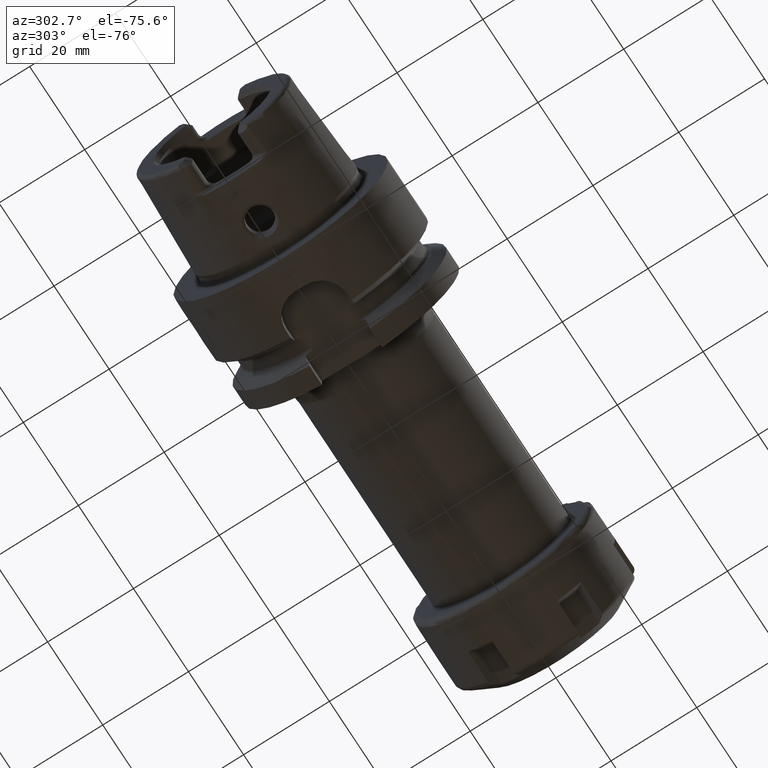
[diagram: clean part render]
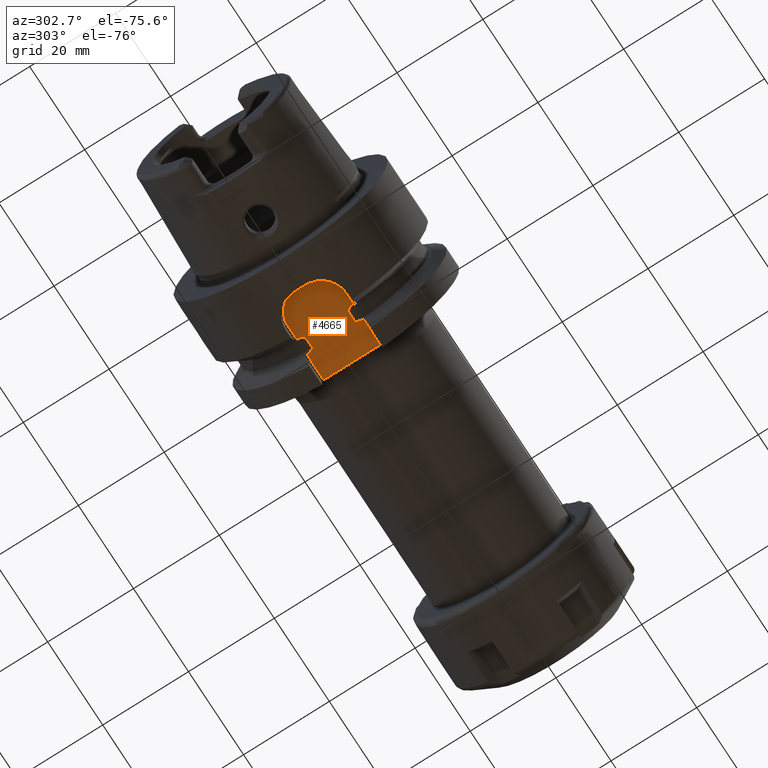
[diagram: same view with one face highlighted and labeled with its STEP entity id]
A machine part, auxiliary view. The second image highlights one B-rep face of the part: STEP entity #4665.
In plain terms, the highlighted planar face has unit normal (0, 0, -1).
Its self-contained STEP definition (entity closure, byte-faithful):
#1239=DIRECTION('',(1.E0,0.E0,0.E0));
#1240=VECTOR('',#1239,2.325E0);
#1241=CARTESIAN_POINT('',(1.68375E1,4.936154880066E0,-2.09E1));
#1242=LINE('',#1241,#1240);
#1247=DIRECTION('',(-1.E0,0.E0,0.E0));
#1248=VECTOR('',#1247,2.325E0);
#1249=CARTESIAN_POINT('',(1.91625E1,-4.936154880066E0,-2.09E1));
#1250=LINE('',#1249,#1248);
#1260=DIRECTION('',(-1.E0,0.E0,0.E0));
#1261=VECTOR('',#1260,6.101156887692E0);
#1262=CARTESIAN_POINT('',(2.595E1,6.6175E0,-2.09E1));
#1263=LINE('',#1262,#1261);
#1264=CARTESIAN_POINT('',(1.91625E1,4.936154880066E0,-2.09E1));
#1265=CARTESIAN_POINT('',(1.918665467019E1,4.936154880066E0,-2.09E1));
#1266=CARTESIAN_POINT('',(1.923332994473E1,4.946110970950E0,-2.09E1));
#1267=CARTESIAN_POINT('',(1.930011591954E1,4.987363827586E0,-2.09E1));
#1268=CARTESIAN_POINT('',(1.935887911623E1,5.045587941002E0,-2.09E1));
#1269=CARTESIAN_POINT('',(1.941409238306E1,5.118852703346E0,-2.09E1));
#1270=CARTESIAN_POINT('',(1.946686951149E1,5.206868186285E0,-2.09E1));
#1271=CARTESIAN_POINT('',(1.951654929273E1,5.306591079075E0,-2.09E1));
#1272=CARTESIAN_POINT('',(1.956328216778E1,5.416157301983E0,-2.09E1));
#1273=CARTESIAN_POINT('',(1.960894126842E1,5.539258725452E0,-2.09E1));
#1274=CARTESIAN_POINT('',(1.965389165734E1,5.677919230316E0,-2.09E1));
#1275=CARTESIAN_POINT('',(1.969822164317E1,5.834375899493E0,-2.09E1));
#1276=CARTESIAN_POINT('',(1.974113045025E1,6.008640625694E0,-2.09E1));
#1277=CARTESIAN_POINT('',(1.978136032274E1,6.198390319559E0,-2.09E1));
#1278=CARTESIAN_POINT('',(1.981792011132E1,6.401808965172E0,-2.09E1));
#1279=CARTESIAN_POINT('',(1.983911091140E1,6.544318876890E0,-2.09E1));
#1280=CARTESIAN_POINT('',(1.984884311231E1,6.6175E0,-2.09E1));
#1282=CARTESIAN_POINT('',(1.615115688769E1,6.6175E0,-2.09E1));
#1283=CARTESIAN_POINT('',(1.616059630509E1,6.546520457630E0,-2.09E1));
#1284=CARTESIAN_POINT('',(1.618088531299E1,6.409869418194E0,-2.09E1));
#1285=CARTESIAN_POINT('',(1.621443132032E1,6.220998282659E0,-2.09E1));
#1286=CARTESIAN_POINT('',(1.625039234994E1,6.047146631886E0,-2.09E1));
#1287=CARTESIAN_POINT('',(1.628822835750E1,5.887550476669E0,-2.09E1));
#1288=CARTESIAN_POINT('',(1.632763220365E1,5.741181051456E0,-2.09E1));
#1289=CARTESIAN_POINT('',(1.636846939363E1,5.607087615814E0,-2.09E1));
#1290=CARTESIAN_POINT('',(1.641059322023E1,5.484860455900E0,-2.09E1));
#1291=CARTESIAN_POINT('',(1.645411702621E1,5.373761682911E0,-2.09E1));
#1292=CARTESIAN_POINT('',(1.649938571891E1,5.273050106936E0,-2.09E1));
#1293=CARTESIAN_POINT('',(1.654715417932E1,5.182075517512E0,-2.09E1));
#1294=CARTESIAN_POINT('',(1.659745553597E1,5.102240920369E0,-2.09E1));
#1295=CARTESIAN_POINT('',(1.665166641432E1,5.033763431053E0,-2.09E1));
#1296=CARTESIAN_POINT('',(1.670962462800E1,4.980199904962E0,-2.09E1));
#1297=CARTESIAN_POINT('',(1.677132698095E1,4.944940158707E0,-2.09E1));
#1298=CARTESIAN_POINT('',(1.681501380385E1,4.936154880066E0,-2.09E1));
#1299=CARTESIAN_POINT('',(1.68375E1,4.936154880066E0,-2.09E1));
#1301=DIRECTION('',(-9.999999999980E-1,-1.425575556479E-6,-1.425508190296E-6));
#1302=VECTOR('',#1301,3.201156882222E0);
#1303=CARTESIAN_POINT('',(1.615115688769E1,6.6175E0,-2.09E1));
#1304=LINE('',#1303,#1302);
#1305=CARTESIAN_POINT('',(1.295E1,1.0175E0,-2.090001235475E1));
#1306=DIRECTION('',(0.E0,0.E0,1.E0));
#1307=DIRECTION('',(0.E0,1.E0,0.E0));
#1308=AXIS2_PLACEMENT_3D('',#1305,#1306,#1307);
#1310=DIRECTION('',(1.737381746262E-11,-1.E0,1.737425391393E-11));
#1311=VECTOR('',#1310,2.034999989443E0);
#1312=CARTESIAN_POINT('',(7.350004563456E0,1.017499994919E0,-2.090000456331E1));
#1313=LINE('',#1312,#1311);
#1314=CARTESIAN_POINT('',(1.295E1,-1.0175E0,-2.090001235475E1));
#1315=DIRECTION('',(0.E0,0.E0,1.E0));
#1316=DIRECTION('',(-1.E0,0.E0,0.E0));
#1317=AXIS2_PLACEMENT_3D('',#1314,#1315,#1316);
#1319=DIRECTION('',(9.999999999980E-1,-1.425564511357E-6,1.425519235067E-6));
#1320=VECTOR('',#1319,3.201156882617E0);
#1321=CARTESIAN_POINT('',(1.295000000508E1,-6.617495436544E0,
-2.090000456331E1));
#1322=LINE('',#1321,#1320);
#1323=CARTESIAN_POINT('',(1.68375E1,-4.936154880066E0,-2.09E1));
#1324=CARTESIAN_POINT('',(1.681345606457E1,-4.936154880066E0,-2.09E1));
#1325=CARTESIAN_POINT('',(1.676698530885E1,-4.945925133428E0,-2.09E1));
#1326=CARTESIAN_POINT('',(1.669960911009E1,-4.987608552877E0,-2.09E1));
#1327=CARTESIAN_POINT('',(1.664193161405E1,-5.044774109148E0,-2.09E1));
#1328=CARTESIAN_POINT('',(1.658737237837E1,-5.116767588353E0,-2.09E1));
#1329=CARTESIAN_POINT('',(1.653557172948E1,-5.202458913993E0,-2.09E1));
#1330=CARTESIAN_POINT('',(1.648556128151E1,-5.301966030164E0,-2.09E1));
#1331=CARTESIAN_POINT('',(1.643873721871E1,-5.411146947143E0,-2.09E1));
#1332=CARTESIAN_POINT('',(1.639376288385E1,-5.531573678958E0,-2.09E1));
#1333=CARTESIAN_POINT('',(1.634913192844E1,-5.668029679674E0,-2.09E1));
#1334=CARTESIAN_POINT('',(1.630446446036E1,-5.824082333451E0,-2.09E1));
#1335=CARTESIAN_POINT('',(1.625965026334E1,-6.004767270383E0,-2.09E1));
#1336=CARTESIAN_POINT('',(1.621744735973E1,-6.203990186122E0,-2.09E1));
#1337=CARTESIAN_POINT('',(1.618022700776E1,-6.413250850859E0,-2.09E1));
#1338=CARTESIAN_POINT('',(1.616020989583E1,-6.549426055627E0,-2.09E1));
#1339=CARTESIAN_POINT('',(1.615115688769E1,-6.6175E0,-2.09E1));
#1341=CARTESIAN_POINT('',(1.984884311231E1,-6.6175E0,-2.09E1));
#1342=CARTESIAN_POINT('',(1.983885092737E1,-6.542363931297E0,-2.09E1));
#1343=CARTESIAN_POINT('',(1.981704668932E1,-6.396126860454E0,-2.09E1));
#1344=CARTESIAN_POINT('',(1.977923007990E1,-6.187247203076E0,-2.09E1));
#1345=CARTESIAN_POINT('',(1.973767465988E1,-5.993408381723E0,-2.09E1));
#1346=CARTESIAN_POINT('',(1.969360613341E1,-5.816932279692E0,-2.09E1));
#1347=CARTESIAN_POINT('',(1.964876348989E1,-5.661136401593E0,-2.09E1));
#1348=CARTESIAN_POINT('',(1.960396346365E1,-5.525076779550E0,-2.09E1));
#1349=CARTESIAN_POINT('',(1.955898227230E1,-5.405518395711E0,-2.09E1));
#1350=CARTESIAN_POINT('',(1.951336994287E1,-5.299900978171E0,-2.09E1));
#1351=CARTESIAN_POINT('',(1.946552509322E1,-5.204594573135E0,-2.09E1));
#1352=CARTESIAN_POINT('',(1.941408222465E1,-5.118978889210E0,-2.09E1));
#1353=CARTESIAN_POINT('',(1.935972880715E1,-5.046557415227E0,-2.09E1));
#1354=CARTESIAN_POINT('',(1.930162561613E1,-4.989013790764E0,-2.09E1));
#1355=CARTESIAN_POINT('',(1.923913329801E1,-4.948719441684E0,-2.09E1));
#1356=CARTESIAN_POINT('',(1.918918212874E1,-4.936154880066E0,-2.09E1));
#1357=CARTESIAN_POINT('',(1.91625E1,-4.936154880066E0,-2.09E1));
#1359=DIRECTION('',(1.E0,0.E0,0.E0));
#1360=VECTOR('',#1359,6.101156887692E0);
#1361=CARTESIAN_POINT('',(1.984884311231E1,-6.6175E0,-2.09E1));
#1362=LINE('',#1361,#1360);
#1363=CARTESIAN_POINT('',(2.595E1,2.046924572476E0,-2.090000243671E1));
#1364=CARTESIAN_POINT('',(2.595E1,1.592379858166E0,-2.090000243671E1));
#1365=CARTESIAN_POINT('',(2.595105271234E1,6.830880845194E-1,
-2.089999898899E1));
#1366=CARTESIAN_POINT('',(2.595105271223E1,-6.830826752546E-1,
-2.089999988346E1));
#1367=CARTESIAN_POINT('',(2.595E1,-1.592396419235E0,-2.090000094592E1));
#1368=CARTESIAN_POINT('',(2.595E1,-2.046941091886E0,-2.090000094592E1));
#1390=DIRECTION('',(0.E0,-1.E0,2.069596103684E-7));
#1391=VECTOR('',#1390,4.570558908114E0);
#1392=CARTESIAN_POINT('',(2.595E1,-2.046941091886E0,-2.090000094592E1));
#1393=LINE('',#1392,#1391);
#1431=DIRECTION('',(0.E0,-9.999999999999E-1,-5.331294166009E-7));
#1432=VECTOR('',#1431,4.570575427524E0);
#1433=CARTESIAN_POINT('',(2.595E1,6.6175E0,-2.09E1));
#1434=LINE('',#1433,#1432);
#2996=CARTESIAN_POINT('',(1.68375E1,-4.936154880066E0,-2.09E1));
#2998=VERTEX_POINT('',#2996);
#3001=CARTESIAN_POINT('',(1.68375E1,4.936154880066E0,-2.09E1));
#3003=VERTEX_POINT('',#3001);
#3004=CARTESIAN_POINT('',(1.91625E1,-4.936154880066E0,-2.09E1));
#3006=VERTEX_POINT('',#3004);
#3009=CARTESIAN_POINT('',(1.91625E1,4.936154880066E0,-2.09E1));
#3011=VERTEX_POINT('',#3009);
#3018=VERTEX_POINT('',#1282);
#3019=VERTEX_POINT('',#1339);
#3020=VERTEX_POINT('',#1341);
#3021=VERTEX_POINT('',#1280);
#3061=CARTESIAN_POINT('',(7.350015025546E0,-1.0175E0,-2.090001235475E1));
#3062=CARTESIAN_POINT('',(1.295E1,-6.617484974454E0,-2.090001235475E1));
#3063=VERTEX_POINT('',#3061);
#3064=VERTEX_POINT('',#3062);
#3069=CARTESIAN_POINT('',(7.350004563456E0,1.017499994919E0,-2.090000456331E1));
#3070=VERTEX_POINT('',#3069);
#3073=CARTESIAN_POINT('',(1.295E1,6.617484974454E0,-2.090001235475E1));
#3074=VERTEX_POINT('',#3073);
#3085=CARTESIAN_POINT('',(2.595E1,6.6175E0,-2.09E1));
#3087=VERTEX_POINT('',#3085);
#3090=CARTESIAN_POINT('',(2.595E1,-6.6175E0,-2.09E1));
#3092=VERTEX_POINT('',#3090);
#3230=CARTESIAN_POINT('',(2.595E1,-2.046954300902E0,-2.089999947584E1));
#3232=VERTEX_POINT('',#3230);
#3243=CARTESIAN_POINT('',(2.595E1,2.046924572476E0,-2.090000243671E1));
#3244=VERTEX_POINT('',#3243);
#4630=CARTESIAN_POINT('',(0.E0,0.E0,-2.09E1));
#4631=DIRECTION('',(0.E0,0.E0,-1.E0));
#4632=DIRECTION('',(1.E0,0.E0,0.E0));
#4633=AXIS2_PLACEMENT_3D('',#4630,#4631,#4632);
#4634=PLANE('',#4633);
#4636=ORIENTED_EDGE('',*,*,#4635,.F.);
#4638=ORIENTED_EDGE('',*,*,#4637,.F.);
#4640=ORIENTED_EDGE('',*,*,#4639,.T.);
#4642=ORIENTED_EDGE('',*,*,#4641,.F.);
#4643=ORIENTED_EDGE('',*,*,#4606,.F.);
#4644=ORIENTED_EDGE('',*,*,#4587,.F.);
#4646=ORIENTED_EDGE('',*,*,#4645,.T.);
#4648=ORIENTED_EDGE('',*,*,#4647,.T.);
#4650=ORIENTED_EDGE('',*,*,#4649,.T.);
#4652=ORIENTED_EDGE('',*,*,#4651,.T.);
#4654=ORIENTED_EDGE('',*,*,#4653,.T.);
#4655=ORIENTED_EDGE('',*,*,#4559,.F.);
#4656=ORIENTED_EDGE('',*,*,#4620,.F.);
#4658=ORIENTED_EDGE('',*,*,#4657,.F.);
#4660=ORIENTED_EDGE('',*,*,#4659,.T.);
#4662=ORIENTED_EDGE('',*,*,#4661,.F.);
#4663=EDGE_LOOP('',(#4636,#4638,#4640,#4642,#4643,#4644,#4646,#4648,#4650,#4652,
#4654,#4655,#4656,#4658,#4660,#4662));
#4664=FACE_OUTER_BOUND('',#4663,.F.);
#4665=ADVANCED_FACE('',(#4664),#4634,.T.);
#1281=B_SPLINE_CURVE_WITH_KNOTS('',3,(#1264,#1265,#1266,#1267,#1268,#1269,#1270,
#1271,#1272,#1273,#1274,#1275,#1276,#1277,#1278,#1279,#1280),.UNSPECIFIED.,.F.,
.F.,(4,1,1,1,1,1,1,1,1,1,1,1,1,1,4),(0.E0,7.142857142857E-2,1.428571428571E-1,
2.142857142857E-1,2.857142857143E-1,3.571428571429E-1,4.285714285714E-1,5.E-1,
5.714285714286E-1,6.428571428571E-1,7.142857142857E-1,7.857142857143E-1,
8.571428571429E-1,9.285714285714E-1,1.E0),.UNSPECIFIED.);
#1300=B_SPLINE_CURVE_WITH_KNOTS('',3,(#1282,#1283,#1284,#1285,#1286,#1287,#1288,
#1289,#1290,#1291,#1292,#1293,#1294,#1295,#1296,#1297,#1298,#1299),
.UNSPECIFIED.,.F.,.F.,(4,1,1,1,1,1,1,1,1,1,1,1,1,1,1,4),(0.E0,6.666666666667E-2,
1.333333333333E-1,2.E-1,2.666666666667E-1,3.333333333333E-1,4.E-1,
4.666666666667E-1,5.333333333333E-1,6.E-1,6.666666666667E-1,7.333333333333E-1,
8.E-1,8.666666666667E-1,9.333333333333E-1,1.E0),.UNSPECIFIED.);
#1309=CIRCLE('',#1308,5.599984974454E0);
#1318=CIRCLE('',#1317,5.599984974454E0);
#1340=B_SPLINE_CURVE_WITH_KNOTS('',3,(#1323,#1324,#1325,#1326,#1327,#1328,#1329,
#1330,#1331,#1332,#1333,#1334,#1335,#1336,#1337,#1338,#1339),.UNSPECIFIED.,.F.,
.F.,(4,1,1,1,1,1,1,1,1,1,1,1,1,1,4),(0.E0,7.142857142857E-2,1.428571428571E-1,
2.142857142857E-1,2.857142857143E-1,3.571428571429E-1,4.285714285714E-1,5.E-1,
5.714285714286E-1,6.428571428571E-1,7.142857142857E-1,7.857142857143E-1,
8.571428571429E-1,9.285714285714E-1,1.E0),.UNSPECIFIED.);
#1358=B_SPLINE_CURVE_WITH_KNOTS('',3,(#1341,#1342,#1343,#1344,#1345,#1346,#1347,
#1348,#1349,#1350,#1351,#1352,#1353,#1354,#1355,#1356,#1357),.UNSPECIFIED.,.F.,
.F.,(4,1,1,1,1,1,1,1,1,1,1,1,1,1,4),(0.E0,7.142857142857E-2,1.428571428571E-1,
2.142857142857E-1,2.857142857143E-1,3.571428571429E-1,4.285714285714E-1,5.E-1,
5.714285714286E-1,6.428571428571E-1,7.142857142857E-1,7.857142857143E-1,
8.571428571429E-1,9.285714285714E-1,1.E0),.UNSPECIFIED.);
#1369=B_SPLINE_CURVE_WITH_KNOTS('',3,(#1363,#1364,#1365,#1366,#1367,#1368),
.UNSPECIFIED.,.F.,.F.,(4,1,1,4),(0.E0,3.333333333333E-1,6.666666666667E-1,1.E0),
.UNSPECIFIED.);
#4559=EDGE_CURVE('',#2998,#3019,#1340,.T.);
#4587=EDGE_CURVE('',#3018,#3003,#1300,.T.);
#4606=EDGE_CURVE('',#3003,#3011,#1242,.T.);
#4620=EDGE_CURVE('',#3006,#2998,#1250,.T.);
#4635=EDGE_CURVE('',#3244,#3232,#1369,.T.);
#4637=EDGE_CURVE('',#3087,#3244,#1434,.T.);
#4639=EDGE_CURVE('',#3087,#3021,#1263,.T.);
#4641=EDGE_CURVE('',#3011,#3021,#1281,.T.);
#4645=EDGE_CURVE('',#3018,#3074,#1304,.T.);
#4647=EDGE_CURVE('',#3074,#3070,#1309,.T.);
#4649=EDGE_CURVE('',#3070,#3063,#1313,.T.);
#4651=EDGE_CURVE('',#3063,#3064,#1318,.T.);
#4653=EDGE_CURVE('',#3064,#3019,#1322,.T.);
#4657=EDGE_CURVE('',#3020,#3006,#1358,.T.);
#4659=EDGE_CURVE('',#3020,#3092,#1362,.T.);
#4661=EDGE_CURVE('',#3232,#3092,#1393,.T.);